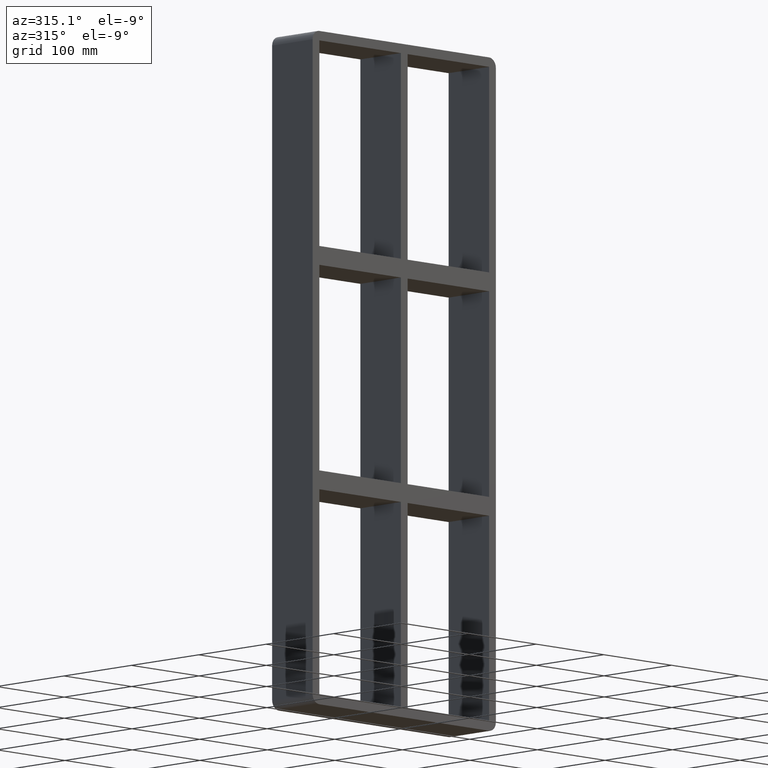
[diagram: clean part render]
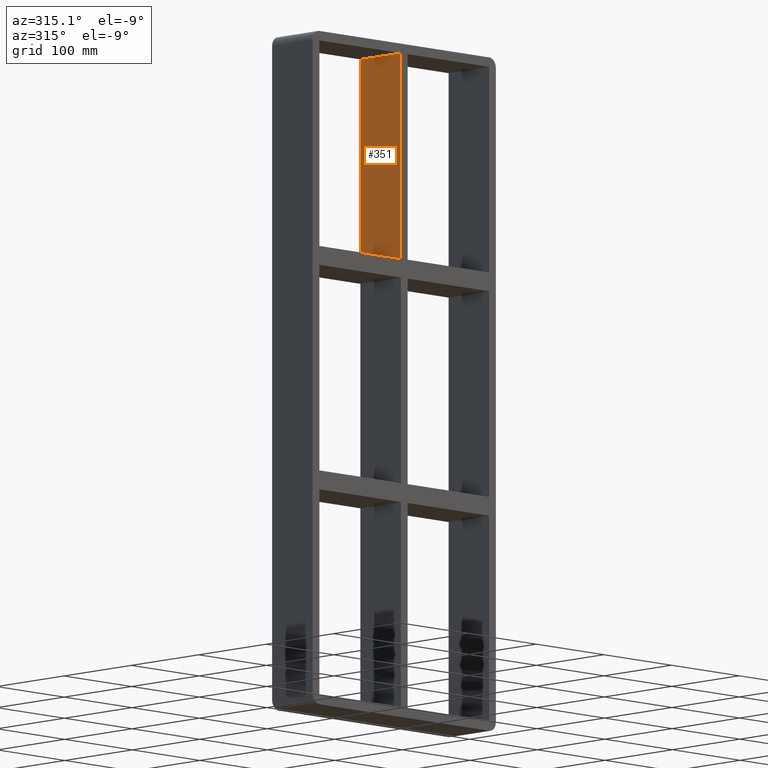
[diagram: same view with one face highlighted and labeled with its STEP entity id]
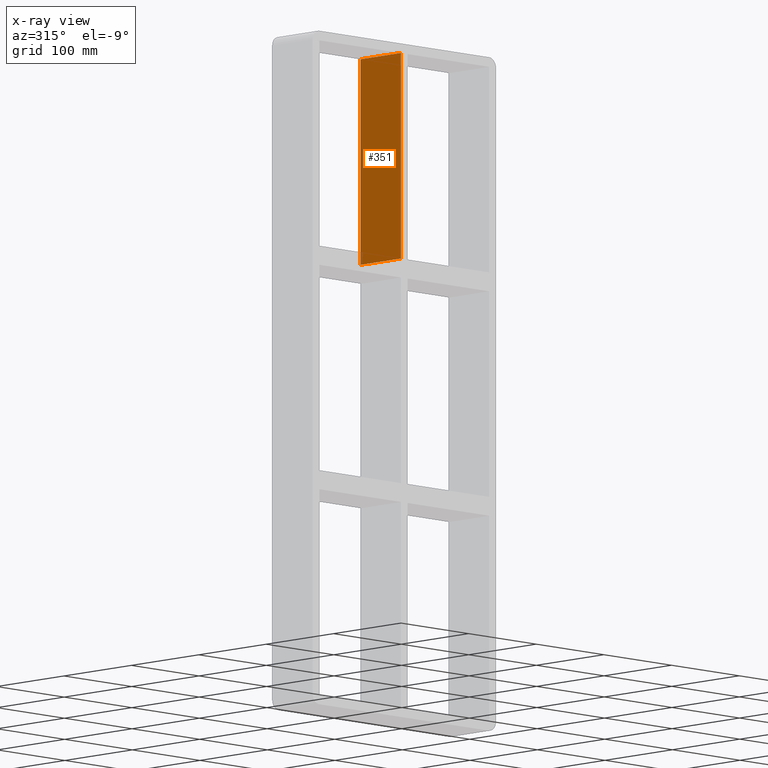
[diagram: x-ray of the same camera — body ghosted, the highlighted face saturated]
A machine part, auxiliary view. The second image highlights one B-rep face of the part: STEP entity #351.
The next image is the same camera in x-ray: the body ghosted, the highlighted face saturated — about 0% of this face is hidden behind the body in this view.
In plain terms, the highlighted planar face has unit normal (-1, 0, 0).
Its self-contained STEP definition (entity closure, byte-faithful):
#153=CARTESIAN_POINT('',(-5.000000000001347,57.0,128.99999999999991));
#154=VERTEX_POINT('',#153);
#155=CARTESIAN_POINT('',(-5.00000000000135,-3.0,128.99999999999994));
#156=VERTEX_POINT('',#155);
#157=CARTESIAN_POINT('',(-5.00000000000135,57.0,128.99999999999994));
#158=DIRECTION('',(0.0,-1.0,0.0));
#159=VECTOR('',#158,60.0);
#160=LINE('',#157,#159);
#161=EDGE_CURVE('',#154,#156,#160,.T.);
#321=CARTESIAN_POINT('',(-5.000000000001261,-3.0,-347.0));
#322=DIRECTION('',(-1.0,0.0,0.0));
#323=DIRECTION('',(0.0,0.0,1.0));
#324=AXIS2_PLACEMENT_3D('',#321,#322,#323);
#325=PLANE('',#324);
#326=ORIENTED_EDGE('',*,*,#161,.T.);
#327=CARTESIAN_POINT('',(-5.000000000001386,-3.0,347.0));
#328=VERTEX_POINT('',#327);
#329=CARTESIAN_POINT('',(-5.000000000001347,-3.0,128.99999999999994));
#330=DIRECTION('',(0.0,0.0,1.0));
#331=VECTOR('',#330,218.00000000000006);
#332=LINE('',#329,#331);
#333=EDGE_CURVE('',#156,#328,#332,.T.);
#334=ORIENTED_EDGE('',*,*,#333,.T.);
#335=CARTESIAN_POINT('',(-5.000000000001386,57.0,347.0));
#336=VERTEX_POINT('',#335);
#337=CARTESIAN_POINT('',(-5.000000000001386,57.000000000000007,347.0));
#338=DIRECTION('',(0.0,-1.0,0.0));
#339=VECTOR('',#338,60.000000000000007);
#340=LINE('',#337,#339);
#341=EDGE_CURVE('',#336,#328,#340,.T.);
#342=ORIENTED_EDGE('',*,*,#341,.F.);
#343=CARTESIAN_POINT('',(-5.000000000001347,57.0,128.99999999999994));
#344=DIRECTION('',(0.0,0.0,1.0));
#345=VECTOR('',#344,218.00000000000006);
#346=LINE('',#343,#345);
#347=EDGE_CURVE('',#154,#336,#346,.T.);
#348=ORIENTED_EDGE('',*,*,#347,.F.);
#349=EDGE_LOOP('',(#326,#334,#342,#348));
#350=FACE_OUTER_BOUND('',#349,.T.);
#351=ADVANCED_FACE('',(#350),#325,.T.);